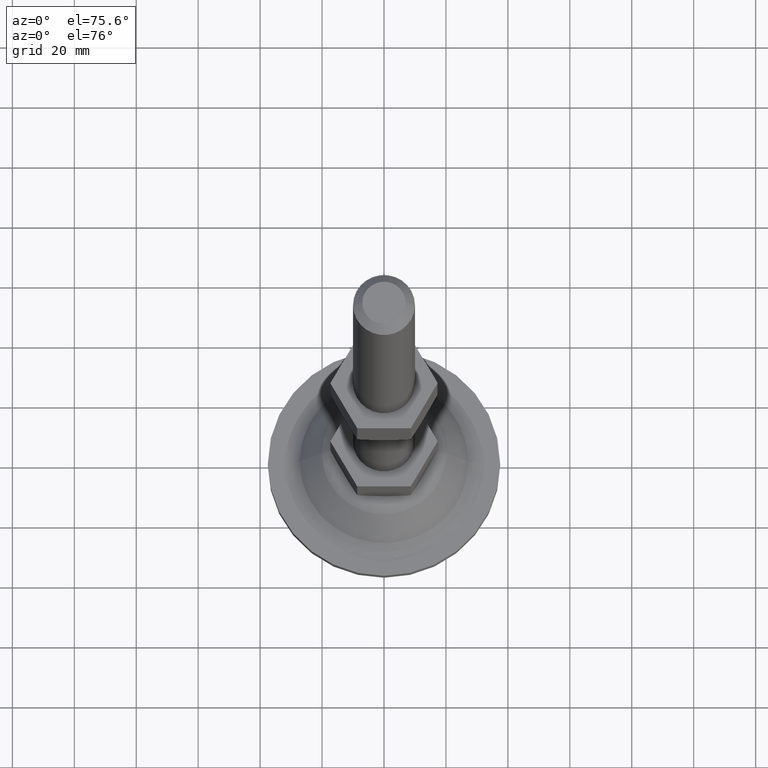
[diagram: clean part render]
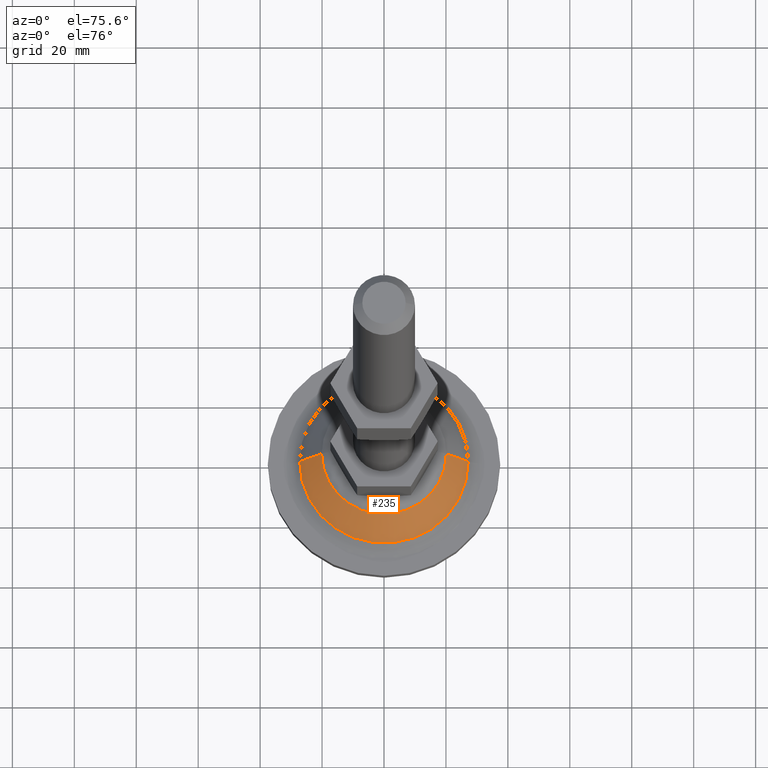
[diagram: same view with one face highlighted and labeled with its STEP entity id]
A machine part, auxiliary view. The second image highlights one B-rep face of the part: STEP entity #235.
In plain terms, the highlighted face is a freeform B-spline surface patch.
Its self-contained STEP definition (entity closure, byte-faithful):
#235=ADVANCED_FACE('',(#1112),#1111,.T.);
#1111=( BOUNDED_SURFACE() B_SPLINE_SURFACE( 2,1,((#1773,#1774),(#1775,#1776),(#1777,#1778),(#1779,#1780),(#1781,#1782)), .UNSPECIFIED.,.F.,.F.,.F.) B_SPLINE_SURFACE_WITH_KNOTS((3,2,3),(2,2),(0.00000000000E+00,5.00000000000E-01,1.00000000000E+00),(0.00000000000E+00,1.00000000000E+00), .UNSPECIFIED. ) GEOMETRIC_REPRESENTATION_ITEM() RATIONAL_B_SPLINE_SURFACE(((1.00000000000E+00,1.00000000000E+00),(7.07106781187E-01,7.07106781187E-01),(1.00000000000E+00,1.00000000000E+00),(7.07106781187E-01,7.07106781187E-01),(1.00000000000E+00,1.00000000000E+00))) REPRESENTATION_ITEM('') SURFACE() );
#1112=FACE_OUTER_BOUND('',#1783,.T.);
#1773=CARTESIAN_POINT('',(2.01478947189E+01,-4.93481095542E-15,-1.61119920888E+01));
#1774=CARTESIAN_POINT('',(2.72090821406E+01,-6.66430307026E-15,-2.61964128305E+01));
#1775=CARTESIAN_POINT('',(2.01478947189E+01,-2.01478947189E+01,-1.61119920888E+01));
#1776=CARTESIAN_POINT('',(2.72090821406E+01,-2.72090821407E+01,-2.61964128305E+01));
#1777=CARTESIAN_POINT('',(-3.52181990925E-11,-2.01478947189E+01,-1.61119920888E+01));
#1778=CARTESIAN_POINT('',(-3.52194962116E-11,-2.72090821407E+01,-2.61964128305E+01));
#1779=CARTESIAN_POINT('',(-2.01478947190E+01,-2.01478947189E+01,-1.61119920888E+01));
#1780=CARTESIAN_POINT('',(-2.72090821407E+01,-2.72090821407E+01,-2.61964128305E+01));
#1781=CARTESIAN_POINT('',(-2.01478947190E+01,2.46740547771E-15,-1.61119920888E+01));
#1782=CARTESIAN_POINT('',(-2.72090821407E+01,3.33215153513E-15,-2.61964128305E+01));
#1783=EDGE_LOOP('',(#2227,#2228,#2229,#2230));
#2227=ORIENTED_EDGE('',*,*,#2442,.F.);
#2228=ORIENTED_EDGE('',*,*,#2445,.F.);
#2229=ORIENTED_EDGE('',*,*,#2446,.T.);
#2230=ORIENTED_EDGE('',*,*,#2447,.T.);
#2442=EDGE_CURVE('',#3767,#3774,#3775,.T.);
#2445=EDGE_CURVE('',#3793,#3767,#3794,.T.);
#2446=EDGE_CURVE('',#3793,#3800,#3801,.T.);
#2447=EDGE_CURVE('',#3800,#3774,#3807,.T.);
#3767=VERTEX_POINT('',#4757);
#3774=VERTEX_POINT('',#4761);
#3775=CIRCLE('',#4765,2.72090821407E+01);
#3793=VERTEX_POINT('',#4773);
#3794=(BOUNDED_CURVE() B_SPLINE_CURVE(1,(#4774,#4775),.UNSPECIFIED.,.F.,.F.) B_SPLINE_CURVE_WITH_KNOTS((2,2),(0.00000000000E+00,1.00000000000E+00),.UNSPECIFIED.) CURVE() GEOMETRIC_REPRESENTATION_ITEM() RATIONAL_B_SPLINE_CURVE((1.00000000000E+00,1.00000000000E+00)) REPRESENTATION_ITEM('') );
#3800=VERTEX_POINT('',#4776);
#3801=CIRCLE('',#4780,2.01478947189E+01);
#3807=(BOUNDED_CURVE() B_SPLINE_CURVE(1,(#4781,#4782),.UNSPECIFIED.,.F.,.F.) B_SPLINE_CURVE_WITH_KNOTS((2,2),(0.00000000000E+00,1.00000000000E+00),.UNSPECIFIED.) CURVE() GEOMETRIC_REPRESENTATION_ITEM() RATIONAL_B_SPLINE_CURVE((7.50000000000E-01,7.50000000000E-01)) REPRESENTATION_ITEM('') );
#4757=CARTESIAN_POINT('',(2.72090821406E+01,1.18423789293E-15,-2.61964128305E+01));
#4761=CARTESIAN_POINT('',(-2.72090821407E+01,0.00000000000E+00,-2.61964128305E+01));
#4762=CARTESIAN_POINT('',(-3.52144979843E-11,0.00000000000E+00,-2.61964128305E+01));
#4763=DIRECTION('',(-0.00000000000E+00,0.00000000000E+00,-1.00000000000E+00));
#4764=DIRECTION('',(-1.00000000000E+00,-1.22460635382E-16,0.00000000000E+00));
#4765=AXIS2_PLACEMENT_3D('',#4762,#4763,#4764);
#4773=CARTESIAN_POINT('',(2.01478947189E+01,1.18423789293E-15,-1.61119920888E+01));
#4774=CARTESIAN_POINT('',(2.01478947189E+01,-4.93481095542E-15,-1.61119920888E+01));
#4775=CARTESIAN_POINT('',(2.72090821406E+01,-6.66430307026E-15,-2.61964128305E+01));
#4776=CARTESIAN_POINT('',(-2.01478947190E+01,0.00000000000E+00,-1.61119920888E+01));
#4777=CARTESIAN_POINT('',(-3.52144979843E-11,0.00000000000E+00,-1.61119920888E+01));
#4778=DIRECTION('',(-0.00000000000E+00,0.00000000000E+00,-1.00000000000E+00));
#4779=DIRECTION('',(-1.00000000000E+00,-1.22460635382E-16,0.00000000000E+00));
#4780=AXIS2_PLACEMENT_3D('',#4777,#4778,#4779);
#4781=CARTESIAN_POINT('',(-2.01478947190E+01,5.92118946467E-15,-1.61119920888E+01));
#4782=CARTESIAN_POINT('',(-2.72090821407E+01,7.10542735760E-15,-2.61964128305E+01));